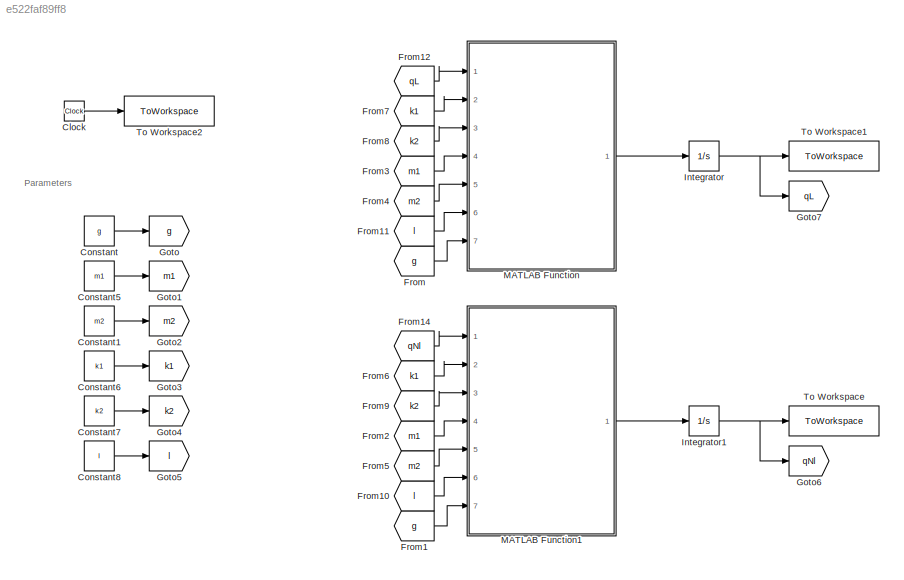
MODEL slx_e522faf89ff8
KIND model
CONFIG AbsTol = auto
CONFIG EnableMultiTasking = off
CONFIG FixedStep = auto
CONFIG InitFcn = q10=5\nq20=0\nq30=0\nq40=0\nk1=20;\nk2=15;\nm1 =2;\nm2=1;\ng=9.8;\nl=0.5;
CONFIG MaxStep = 0.01
CONFIG MinStep = auto
CONFIG RelTol = 1e-3
CONFIG SampleTimeConstraint = Unconstrained
CONFIG SolverName = VariableStepAuto
CONFIG StartTime = 0.0
CONFIG StopTime = 10.0
BLOCK [Clock] Clock
BLOCK [Constant] Constant
  Value = g
BLOCK [Constant] Constant1
  Value = m2
BLOCK [Constant] Constant5
  Value = m1
BLOCK [Constant] Constant6
  Value = k1
BLOCK [Constant] Constant7
  Value = k2
BLOCK [Constant] Constant8
  Value = l
BLOCK [From] From
  GotoTag = g
BLOCK [From] From1
  GotoTag = g
BLOCK [From] From10
  GotoTag = l
BLOCK [From] From11
  GotoTag = l
BLOCK [From] From12
  GotoTag = qL
BLOCK [From] From14
  GotoTag = qNl
BLOCK [From] From2
  GotoTag = m1
BLOCK [From] From3
  GotoTag = m1
BLOCK [From] From4
  GotoTag = m2
BLOCK [From] From5
  GotoTag = m2
BLOCK [From] From6
  GotoTag = k1
BLOCK [From] From7
  GotoTag = k1
BLOCK [From] From8
  GotoTag = k2
BLOCK [From] From9
  GotoTag = k2
BLOCK [Goto] Goto
  GotoTag = g
BLOCK [Goto] Goto1
  GotoTag = m1
BLOCK [Goto] Goto2
  GotoTag = m2
BLOCK [Goto] Goto3
  GotoTag = k1
BLOCK [Goto] Goto4
  GotoTag = k2
BLOCK [Goto] Goto5
  GotoTag = l
BLOCK [Goto] Goto6
  GotoTag = qNl
BLOCK [Goto] Goto7
  GotoTag = qL
BLOCK [Integrator] Integrator
  InitialCondition = [q10;q20;q30;q40]
  Ports = [1, 1]
BLOCK [Integrator] Integrator1
  InitialCondition = [q10;q20;q30;q40]
  Ports = [1, 1]
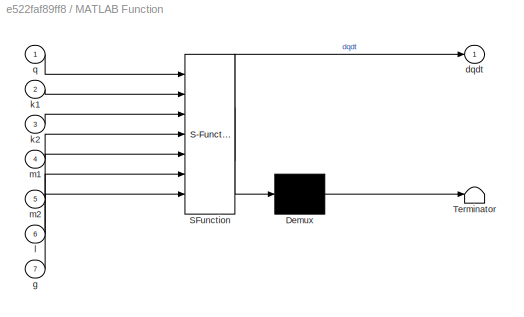
BLOCK [SubSystem] MATLAB Function
  ErrorFcn = Stateflow.Translate.translate
  PermitHierarchicalResolution = ExplicitOnly
  Ports = [7, 1]
  RequestExecContextInheritance = off
  SFBlockType = MATLAB Function
  TreatAsAtomicUnit = on
BLOCK [Demux] MATLAB Function/ Demux 
  Outputs = 1
  Ports = [1, 1]
BLOCK [S-Function] MATLAB Function/ SFunction 
  EnableBusSupport = on
  FunctionName = sf_sfun
  PortCounts = [7 2]
  Ports = [7, 2]
  SFcnIsStateOwnerBlock = off
  SFunctionDeploymentMode = off
  Tag = Stateflow S-Function 2
BLOCK [Terminator] MATLAB Function/ Terminator 
BLOCK [Outport] MATLAB Function/dqdt
  VectorParamsAs1DForOutWhenUnconnected = off
BLOCK [Inport] MATLAB Function/g
  Port = 7
BLOCK [Inport] MATLAB Function/k1
  Port = 2
BLOCK [Inport] MATLAB Function/k2
  Port = 3
BLOCK [Inport] MATLAB Function/l
  Port = 6
BLOCK [Inport] MATLAB Function/m1
  Port = 4
BLOCK [Inport] MATLAB Function/m2
  Port = 5
BLOCK [Inport] MATLAB Function/q
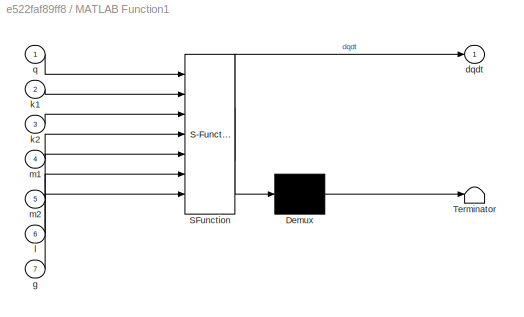
BLOCK [SubSystem] MATLAB Function1
  ErrorFcn = Stateflow.Translate.translate
  PermitHierarchicalResolution = ExplicitOnly
  Ports = [7, 1]
  RequestExecContextInheritance = off
  SFBlockType = MATLAB Function
  TreatAsAtomicUnit = on
BLOCK [Demux] MATLAB Function1/ Demux 
  Outputs = 1
  Ports = [1, 1]
BLOCK [S-Function] MATLAB Function1/ SFunction 
  EnableBusSupport = on
  FunctionName = sf_sfun
  PortCounts = [7 2]
  Ports = [7, 2]
  SFcnIsStateOwnerBlock = off
  SFunctionDeploymentMode = off
  Tag = Stateflow S-Function 1
BLOCK [Terminator] MATLAB Function1/ Terminator 
BLOCK [Outport] MATLAB Function1/dqdt
  VectorParamsAs1DForOutWhenUnconnected = off
BLOCK [Inport] MATLAB Function1/g
  Port = 7
BLOCK [Inport] MATLAB Function1/k1
  Port = 2
BLOCK [Inport] MATLAB Function1/k2
  Port = 3
BLOCK [Inport] MATLAB Function1/l
  Port = 6
BLOCK [Inport] MATLAB Function1/m1
  Port = 4
BLOCK [Inport] MATLAB Function1/m2
  Port = 5
BLOCK [Inport] MATLAB Function1/q
BLOCK [ToWorkspace] To Workspace
  FixptAsFi = on
  MaxDataPoints = inf
  Ports = [1]
  SampleTime = -1
  VariableName = qnonlinear
BLOCK [ToWorkspace] To Workspace1
  FixptAsFi = on
  MaxDataPoints = inf
  Ports = [1]
  SampleTime = -1
  VariableName = qLinear
BLOCK [ToWorkspace] To Workspace2
  FixptAsFi = on
  MaxDataPoints = inf
  Ports = [1]
  SampleTime = -1
  VariableName = time
ANNOTATION (root): Parameters
LINE Clock:1 -> To Workspace2:1
LINE Constant1:1 -> Goto2:1
LINE Constant5:1 -> Goto1:1
LINE Constant6:1 -> Goto3:1
LINE Constant7:1 -> Goto4:1
LINE Constant8:1 -> Goto5:1
LINE Constant:1 -> Goto:1
LINE From10:1 -> MATLAB Function1:6
LINE From11:1 -> MATLAB Function:6
LINE From12:1 -> MATLAB Function:1
LINE From14:1 -> MATLAB Function1:1
LINE From1:1 -> MATLAB Function1:7
LINE From2:1 -> MATLAB Function1:4
LINE From3:1 -> MATLAB Function:4
LINE From4:1 -> MATLAB Function:5
LINE From5:1 -> MATLAB Function1:5
LINE From6:1 -> MATLAB Function1:2
LINE From7:1 -> MATLAB Function:2
LINE From8:1 -> MATLAB Function:3
LINE From9:1 -> MATLAB Function1:3
LINE From:1 -> MATLAB Function:7
NET Integrator1:1 -> Goto6:1, To Workspace:1
NET Integrator:1 -> Goto7:1, To Workspace1:1
LINE MATLAB Function1:1 -> Integrator1:1
LINE MATLAB Function:1 -> Integrator:1
note: NET lines group one-source signal fan-out (src -> all destinations, sorted); 1:1 wires keep LINE
CHART MATLAB Function1 states=1 transitions=1
  STATE_LABEL 'eML_blk_kernel()'
  STATE_LABEL 'SCRIPT:\nfunction dqdt = Nonlinear(q,k1,k2,m1,m2,l,g)\n\n\ndqdt=[q(2);\n    -k1*(l*sin(q(1))-l*sin(q(3))*(l*cos(q(1))))/(m1*l^2)-m1*g*l*sin(q(1))/(m1*l^2);\n    q(4);\n    +k1*(l*sin(q(1))-l*sin(q(3))*(l*cos(q(3))))/(m2*l^2)-k2*(l*sin(q(3)))*(l*cos(q(3)))/(m2*l^2)-m2*g*l*sin(q(3))/(m2*l^2);];\nend'
CHART MATLAB Function states=1 transitions=1
  STATE_LABEL 'eML_blk_kernel()'
  STATE_LABEL 'SCRIPT:\nfunction dqdt = Linear(q,k1,k2,m1,m2,l,g)\n\n\ndqdt=[q(2);\n    -k1/m1*(q(1)-q(3))-g*q(1)/l;%-k1/m1-g/l*q(1)+k1/m1*q(3);\n    q(4);\n    k1*(q(1)-q(3))/m2-k2/m2*q(3)-g*q(3)/l;];%k1/m2*q(1)-((k1+k2)/m2+g/l)*q(3)];\nend'
CHART  states=0 transitions=0
CHART  states=0 transitions=0
